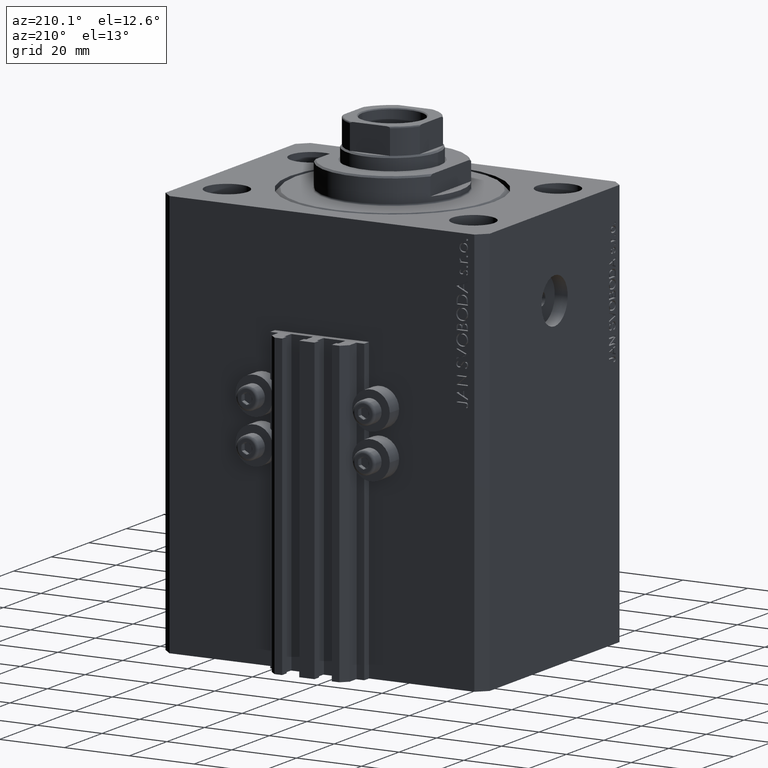
[diagram: clean part render]
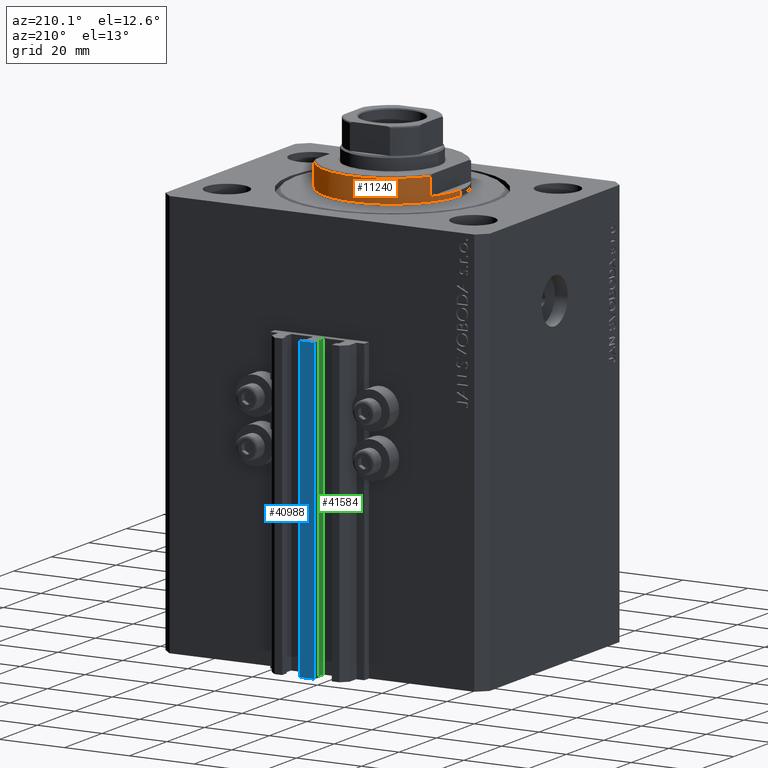
[diagram: same view with three faces highlighted in distinct colors, each labeled with its STEP entity id]
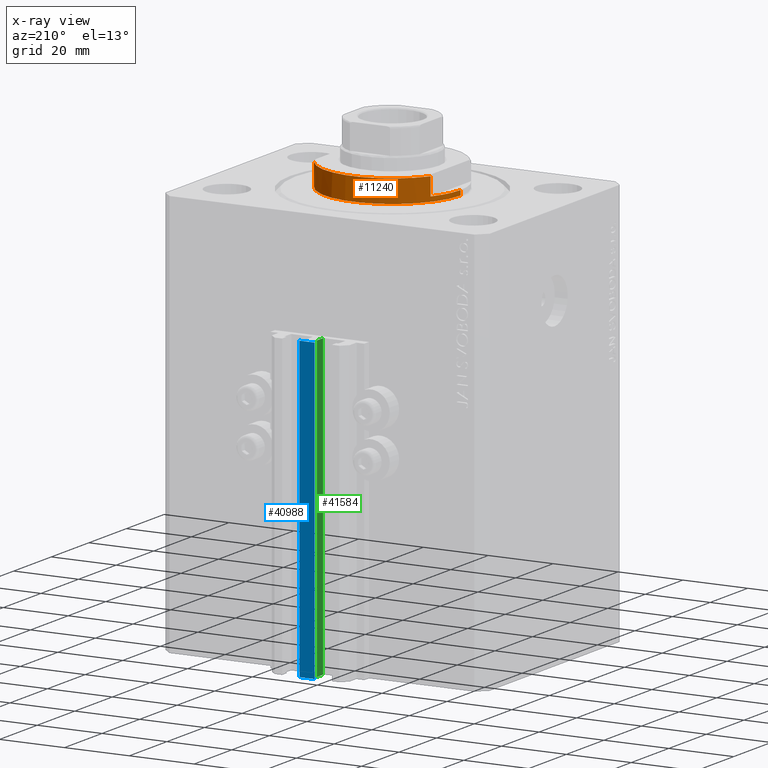
[diagram: x-ray of the same camera — body ghosted, the three highlighted faces saturated]
A machine part, auxiliary view with three faces highlighted in distinct colors.
The next image is the same camera in x-ray (body ghosted, the three faces saturated) — at least one of them is partly hidden behind the body in this view.
Their STEP definitions:

[orange] entity #11240 — the highlighted cylindrical surface (partial cylindrical patch) has radius 21 mm, axis along (0, 0, -1).
#573 = VERTEX_POINT ( 'NONE', #22769 ) ;
#898 = CARTESIAN_POINT ( 'NONE',  ( 21.00000000000000000, 0.000000000000000000, -2.000000000000000000 ) ) ;
#1873 = EDGE_LOOP ( 'NONE', ( #30985, #34884, #9004, #33661, #8028, #45624, #3751, #1878 ) ) ;
#1878 = ORIENTED_EDGE ( 'NONE', *, *, #18364, .T. ) ;
#3751 = ORIENTED_EDGE ( 'NONE', *, *, #27769, .T. ) ;
#4176 = CARTESIAN_POINT ( 'NONE',  ( 18.00000000000000000, 10.81665382639197048, -8.000000000000000000 ) ) ;
#4806 = LINE ( 'NONE', #11976, #25099 ) ;
#4893 = DIRECTION ( 'NONE',  ( -0.000000000000000000, -0.000000000000000000, 1.000000000000000000 ) ) ;
#5822 = LINE ( 'NONE', #30950, #39542 ) ;
#6684 = CARTESIAN_POINT ( 'NONE',  ( 0.000000000000000000, 0.000000000000000000, -2.000000000000000000 ) ) ;
#7815 = CARTESIAN_POINT ( 'NONE',  ( 0.000000000000000000, 0.000000000000000000, -2.000000000000000000 ) ) ;
#8028 = ORIENTED_EDGE ( 'NONE', *, *, #25507, .F. ) ;
#9004 = ORIENTED_EDGE ( 'NONE', *, *, #22595, .T. ) ;
#9434 = AXIS2_PLACEMENT_3D ( 'NONE', #29632, #33214, #11429 ) ;
#10462 = LINE ( 'NONE', #35842, #28430 ) ;
#10702 = CARTESIAN_POINT ( 'NONE',  ( -18.00000000000000000, 10.81665382639197048, -2.000000000000000000 ) ) ;
#11240 = ADVANCED_FACE ( 'NONE', ( #34991 ), #16082, .T. ) ;
#11429 = DIRECTION ( 'NONE',  ( -1.000000000000000000, 0.000000000000000000, 0.000000000000000000 ) ) ;
#11577 = CARTESIAN_POINT ( 'NONE',  ( 18.00000000000000000, 10.81665382639197048, -2.000000000000000000 ) ) ;
#11976 = CARTESIAN_POINT ( 'NONE',  ( -21.00000000000000000, 2.571758278209441661E-15, -8.000000000000000000 ) ) ;
#12752 = EDGE_CURVE ( 'NONE', #23458, #29998, #46067, .T. ) ;
#12817 = VERTEX_POINT ( 'NONE', #898 ) ;
#16082 = CYLINDRICAL_SURFACE ( 'NONE', #41446, 21.00000000000000000 ) ;
#18364 = EDGE_CURVE ( 'NONE', #31395, #29998, #10462, .T. ) ;
#18541 = AXIS2_PLACEMENT_3D ( 'NONE', #6684, #43533, #35196 ) ;
#18618 = CARTESIAN_POINT ( 'NONE',  ( -21.00000000000000000, 2.571758278209441661E-15, -2.000000000000000000 ) ) ;
#19242 = LINE ( 'NONE', #4176, #40831 ) ;
#20416 = VERTEX_POINT ( 'NONE', #27960 ) ;
#20465 = VERTEX_POINT ( 'NONE', #37527 ) ;
#21948 = DIRECTION ( 'NONE',  ( -1.000000000000000000, 0.000000000000000000, 0.000000000000000000 ) ) ;
#22595 = EDGE_CURVE ( 'NONE', #573, #20465, #45844, .T. ) ;
#22769 = CARTESIAN_POINT ( 'NONE',  ( -21.00000000000000000, 2.571758278209441661E-15, -0.5000000000000004441 ) ) ;
#23458 = VERTEX_POINT ( 'NONE', #18618 ) ;
#23814 = DIRECTION ( 'NONE',  ( -0.000000000000000000, -0.000000000000000000, -1.000000000000000000 ) ) ;
#25099 = VECTOR ( 'NONE', #30864, 1000.000000000000000 ) ;
#25190 = AXIS2_PLACEMENT_3D ( 'NONE', #42004, #23814, #45355 ) ;
#25507 = EDGE_CURVE ( 'NONE', #41078, #12817, #30778, .T. ) ;
#25631 = CARTESIAN_POINT ( 'NONE',  ( -18.00000000000000000, 10.81665382639197048, -7.500000000000016875 ) ) ;
#27015 = CIRCLE ( 'NONE', #9434, 21.00000000000000000 ) ;
#27570 = CARTESIAN_POINT ( 'NONE',  ( 0.000000000000000000, 0.000000000000000000, -8.000000000000000000 ) ) ;
#27769 = EDGE_CURVE ( 'NONE', #20416, #31395, #27015, .T. ) ;
#27960 = CARTESIAN_POINT ( 'NONE',  ( 18.00000000000000000, 10.81665382639197048, -7.500000000000016875 ) ) ;
#28430 = VECTOR ( 'NONE', #42796, 1000.000000000000000 ) ;
#29016 = EDGE_CURVE ( 'NONE', #20416, #41078, #19242, .T. ) ;
#29632 = CARTESIAN_POINT ( 'NONE',  ( 0.000000000000000000, 0.000000000000000000, -7.500000000000016875 ) ) ;
#29998 = VERTEX_POINT ( 'NONE', #10702 ) ;
#30778 = CIRCLE ( 'NONE', #18541, 21.00000000000000000 ) ;
#30864 = DIRECTION ( 'NONE',  ( -0.000000000000000000, -0.000000000000000000, 1.000000000000000000 ) ) ;
#30950 = CARTESIAN_POINT ( 'NONE',  ( 21.00000000000000000, 0.000000000000000000, -8.000000000000000000 ) ) ;
#30985 = ORIENTED_EDGE ( 'NONE', *, *, #12752, .F. ) ;
#31395 = VERTEX_POINT ( 'NONE', #25631 ) ;
#33214 = DIRECTION ( 'NONE',  ( 0.000000000000000000, 0.000000000000000000, 1.000000000000000000 ) ) ;
#33661 = ORIENTED_EDGE ( 'NONE', *, *, #41945, .F. ) ;
#34884 = ORIENTED_EDGE ( 'NONE', *, *, #44371, .T. ) ;
#34991 = FACE_OUTER_BOUND ( 'NONE', #1873, .T. ) ;
#35196 = DIRECTION ( 'NONE',  ( -1.000000000000000000, 0.000000000000000000, 0.000000000000000000 ) ) ;
#35842 = CARTESIAN_POINT ( 'NONE',  ( -18.00000000000000000, 10.81665382639197048, -8.000000000000000000 ) ) ;
#37527 = CARTESIAN_POINT ( 'NONE',  ( 21.00000000000000000, 0.000000000000000000, -0.5000000000000004441 ) ) ;
#39542 = VECTOR ( 'NONE', #45561, 1000.000000000000000 ) ;
#40831 = VECTOR ( 'NONE', #4893, 1000.000000000000000 ) ;
#41078 = VERTEX_POINT ( 'NONE', #11577 ) ;
#41446 = AXIS2_PLACEMENT_3D ( 'NONE', #27570, #42401, #45286 ) ;
#41945 = EDGE_CURVE ( 'NONE', #12817, #20465, #5822, .T. ) ;
#42004 = CARTESIAN_POINT ( 'NONE',  ( 0.000000000000000000, 0.000000000000000000, -0.5000000000000004441 ) ) ;
#42401 = DIRECTION ( 'NONE',  ( -0.000000000000000000, -0.000000000000000000, 1.000000000000000000 ) ) ;
#42796 = DIRECTION ( 'NONE',  ( -0.000000000000000000, -0.000000000000000000, 1.000000000000000000 ) ) ;
#43533 = DIRECTION ( 'NONE',  ( 0.000000000000000000, 0.000000000000000000, -1.000000000000000000 ) ) ;
#44371 = EDGE_CURVE ( 'NONE', #23458, #573, #4806, .T. ) ;
#45286 = DIRECTION ( 'NONE',  ( 1.000000000000000000, 0.000000000000000000, 0.000000000000000000 ) ) ;
#45302 = AXIS2_PLACEMENT_3D ( 'NONE', #7815, #47088, #21948 ) ;
#45355 = DIRECTION ( 'NONE',  ( 1.000000000000000000, 0.000000000000000000, 0.000000000000000000 ) ) ;
#45561 = DIRECTION ( 'NONE',  ( -0.000000000000000000, -0.000000000000000000, 1.000000000000000000 ) ) ;
#45624 = ORIENTED_EDGE ( 'NONE', *, *, #29016, .F. ) ;
#45844 = CIRCLE ( 'NONE', #25190, 21.00000000000000000 ) ;
#46067 = CIRCLE ( 'NONE', #45302, 21.00000000000000000 ) ;
#47088 = DIRECTION ( 'NONE',  ( 0.000000000000000000, 0.000000000000000000, -1.000000000000000000 ) ) ;

[blue] entity #40988 — the highlighted planar face has unit normal (0, -1, 0).
#1354 = EDGE_CURVE ( 'NONE', #41423, #28603, #24981, .T. ) ;
#1714 = DIRECTION ( 'NONE',  ( 1.000000000000000000, 0.000000000000000000, 0.000000000000000000 ) ) ;
#6573 = CARTESIAN_POINT ( 'NONE',  ( -2.350000000000003642, 45.50000000000000711, -125.0000000000000000 ) ) ;
#6811 = DIRECTION ( 'NONE',  ( 0.000000000000000000, -1.000000000000000000, 0.000000000000000000 ) ) ;
#7274 = FACE_OUTER_BOUND ( 'NONE', #13044, .T. ) ;
#8409 = VECTOR ( 'NONE', #23847, 1000.000000000000000 ) ;
#9889 = EDGE_CURVE ( 'NONE', #33249, #41423, #12588, .T. ) ;
#10394 = PLANE ( 'NONE',  #29583 ) ;
#10509 = CARTESIAN_POINT ( 'NONE',  ( -2.350000000000003642, 45.50000000000000711, -125.0000000000000000 ) ) ;
#12588 = LINE ( 'NONE', #24326, #8409 ) ;
#13044 = EDGE_LOOP ( 'NONE', ( #43297, #20510, #35118, #28993 ) ) ;
#13066 = CARTESIAN_POINT ( 'NONE',  ( 2.349999999999999645, 45.50000000000000711, -33.00000000000000000 ) ) ;
#17856 = CARTESIAN_POINT ( 'NONE',  ( 2.349999999999999645, 45.50000000000000711, -125.0000000000000000 ) ) ;
#19008 = VECTOR ( 'NONE', #30960, 1000.000000000000000 ) ;
#20510 = ORIENTED_EDGE ( 'NONE', *, *, #20758, .F. ) ;
#20758 = EDGE_CURVE ( 'NONE', #47054, #28603, #26910, .T. ) ;
#22855 = CARTESIAN_POINT ( 'NONE',  ( 2.349999999999999645, 45.50000000000000711, -125.0000000000000000 ) ) ;
#23847 = DIRECTION ( 'NONE',  ( 0.000000000000000000, 0.000000000000000000, 1.000000000000000000 ) ) ;
#24326 = CARTESIAN_POINT ( 'NONE',  ( -2.350000000000003642, 45.50000000000000711, -125.0000000000000000 ) ) ;
#24981 = LINE ( 'NONE', #39810, #31759 ) ;
#26852 = CARTESIAN_POINT ( 'NONE',  ( -2.350000000000003642, 45.50000000000000711, -125.0000000000000000 ) ) ;
#26910 = LINE ( 'NONE', #22855, #19008 ) ;
#27240 = EDGE_CURVE ( 'NONE', #33249, #47054, #45282, .T. ) ;
#27304 = CARTESIAN_POINT ( 'NONE',  ( -2.350000000000003642, 45.50000000000000711, -33.00000000000000000 ) ) ;
#28603 = VERTEX_POINT ( 'NONE', #13066 ) ;
#28993 = ORIENTED_EDGE ( 'NONE', *, *, #9889, .T. ) ;
#29583 = AXIS2_PLACEMENT_3D ( 'NONE', #6573, #6811, #36013 ) ;
#30960 = DIRECTION ( 'NONE',  ( 0.000000000000000000, 0.000000000000000000, 1.000000000000000000 ) ) ;
#31759 = VECTOR ( 'NONE', #39575, 1000.000000000000000 ) ;
#33249 = VERTEX_POINT ( 'NONE', #10509 ) ;
#35118 = ORIENTED_EDGE ( 'NONE', *, *, #27240, .F. ) ;
#36013 = DIRECTION ( 'NONE',  ( 0.000000000000000000, -0.000000000000000000, -1.000000000000000000 ) ) ;
#36940 = VECTOR ( 'NONE', #1714, 1000.000000000000000 ) ;
#39575 = DIRECTION ( 'NONE',  ( 1.000000000000000000, 0.000000000000000000, 0.000000000000000000 ) ) ;
#39810 = CARTESIAN_POINT ( 'NONE',  ( -2.350000000000003642, 45.50000000000000711, -33.00000000000000000 ) ) ;
#40988 = ADVANCED_FACE ( 'NONE', ( #7274 ), #10394, .F. ) ;
#41423 = VERTEX_POINT ( 'NONE', #27304 ) ;
#43297 = ORIENTED_EDGE ( 'NONE', *, *, #1354, .T. ) ;
#45282 = LINE ( 'NONE', #26852, #36940 ) ;
#47054 = VERTEX_POINT ( 'NONE', #17856 ) ;

[green] entity #41584 — the highlighted planar face has unit normal (-1, 0, 0).
#2765 = EDGE_CURVE ( 'NONE', #41029, #41832, #3101, .T. ) ;
#3101 = LINE ( 'NONE', #39249, #20298 ) ;
#4293 = FACE_OUTER_BOUND ( 'NONE', #12432, .T. ) ;
#4369 = VECTOR ( 'NONE', #25483, 1000.000000000000000 ) ;
#5249 = EDGE_CURVE ( 'NONE', #36334, #41029, #47101, .T. ) ;
#8110 = CARTESIAN_POINT ( 'NONE',  ( -1.600000000000000533, 42.90000000000000568, -125.0000000000000000 ) ) ;
#9291 = DIRECTION ( 'NONE',  ( -1.000000000000000000, 6.776263578034385456E-17, 0.000000000000000000 ) ) ;
#10456 = CARTESIAN_POINT ( 'NONE',  ( -1.600000000000000755, 39.69999999999999574, -33.00000000000000000 ) ) ;
#10980 = DIRECTION ( 'NONE',  ( 0.000000000000000000, 0.000000000000000000, 1.000000000000000000 ) ) ;
#12214 = ORIENTED_EDGE ( 'NONE', *, *, #5249, .T. ) ;
#12432 = EDGE_LOOP ( 'NONE', ( #25959, #14694, #12214, #17536 ) ) ;
#13444 = LINE ( 'NONE', #24467, #37343 ) ;
#14063 = DIRECTION ( 'NONE',  ( -6.776263578034385456E-17, -1.000000000000000000, 0.000000000000000000 ) ) ;
#14460 = CARTESIAN_POINT ( 'NONE',  ( -1.599999999999997868, 42.90000000000000568, -125.0000000000000000 ) ) ;
#14694 = ORIENTED_EDGE ( 'NONE', *, *, #40978, .F. ) ;
#17536 = ORIENTED_EDGE ( 'NONE', *, *, #2765, .T. ) ;
#20298 = VECTOR ( 'NONE', #10980, 1000.000000000000000 ) ;
#21081 = DIRECTION ( 'NONE',  ( -6.776263578034385456E-17, -1.000000000000000000, 0.000000000000000000 ) ) ;
#22124 = CARTESIAN_POINT ( 'NONE',  ( -1.600000000000000755, 39.69999999999999574, -125.0000000000000000 ) ) ;
#22748 = AXIS2_PLACEMENT_3D ( 'NONE', #8110, #9291, #23422 ) ;
#22939 = CARTESIAN_POINT ( 'NONE',  ( -1.599999999999997868, 42.90000000000000568, -125.0000000000000000 ) ) ;
#23422 = DIRECTION ( 'NONE',  ( -6.776263578034385456E-17, -1.000000000000000000, 0.000000000000000000 ) ) ;
#24467 = CARTESIAN_POINT ( 'NONE',  ( -1.600000000000000533, 42.90000000000000568, -33.00000000000000000 ) ) ;
#25483 = DIRECTION ( 'NONE',  ( 0.000000000000000000, 0.000000000000000000, 1.000000000000000000 ) ) ;
#25959 = ORIENTED_EDGE ( 'NONE', *, *, #43984, .F. ) ;
#27999 = VERTEX_POINT ( 'NONE', #36693 ) ;
#29902 = PLANE ( 'NONE',  #22748 ) ;
#32185 = LINE ( 'NONE', #14460, #4369 ) ;
#36334 = VERTEX_POINT ( 'NONE', #22939 ) ;
#36693 = CARTESIAN_POINT ( 'NONE',  ( -1.599999999999997868, 42.90000000000000568, -33.00000000000000000 ) ) ;
#37343 = VECTOR ( 'NONE', #21081, 1000.000000000000000 ) ;
#39249 = CARTESIAN_POINT ( 'NONE',  ( -1.600000000000000755, 39.69999999999999574, -125.0000000000000000 ) ) ;
#39439 = CARTESIAN_POINT ( 'NONE',  ( -1.600000000000000533, 42.90000000000000568, -125.0000000000000000 ) ) ;
#40978 = EDGE_CURVE ( 'NONE', #36334, #27999, #32185, .T. ) ;
#41029 = VERTEX_POINT ( 'NONE', #22124 ) ;
#41584 = ADVANCED_FACE ( 'NONE', ( #4293 ), #29902, .T. ) ;
#41832 = VERTEX_POINT ( 'NONE', #10456 ) ;
#43984 = EDGE_CURVE ( 'NONE', #27999, #41832, #13444, .T. ) ;
#44849 = VECTOR ( 'NONE', #14063, 1000.000000000000000 ) ;
#47101 = LINE ( 'NONE', #39439, #44849 ) ;